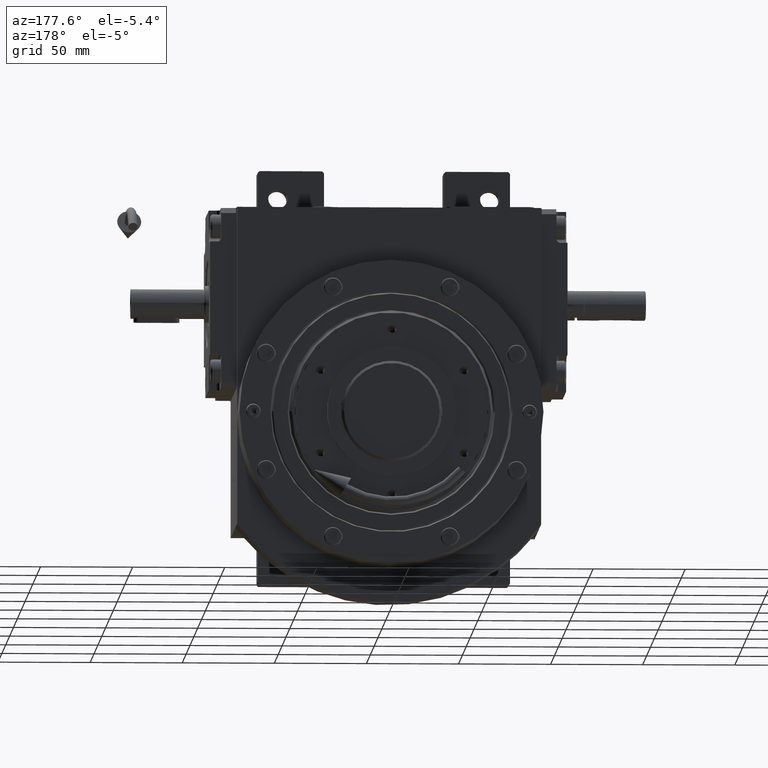
[diagram: clean part render]
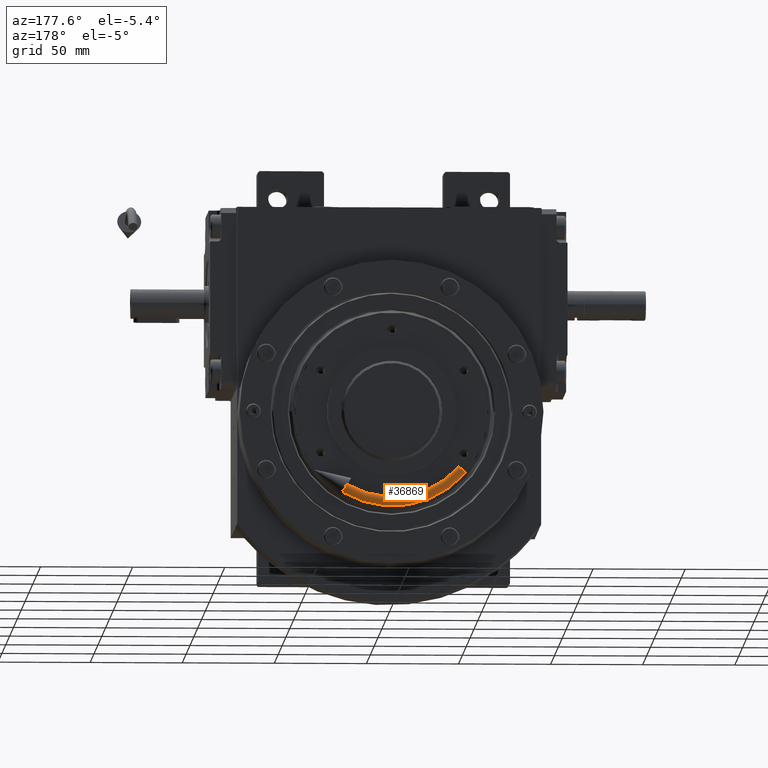
[diagram: same view with one face highlighted and labeled with its STEP entity id]
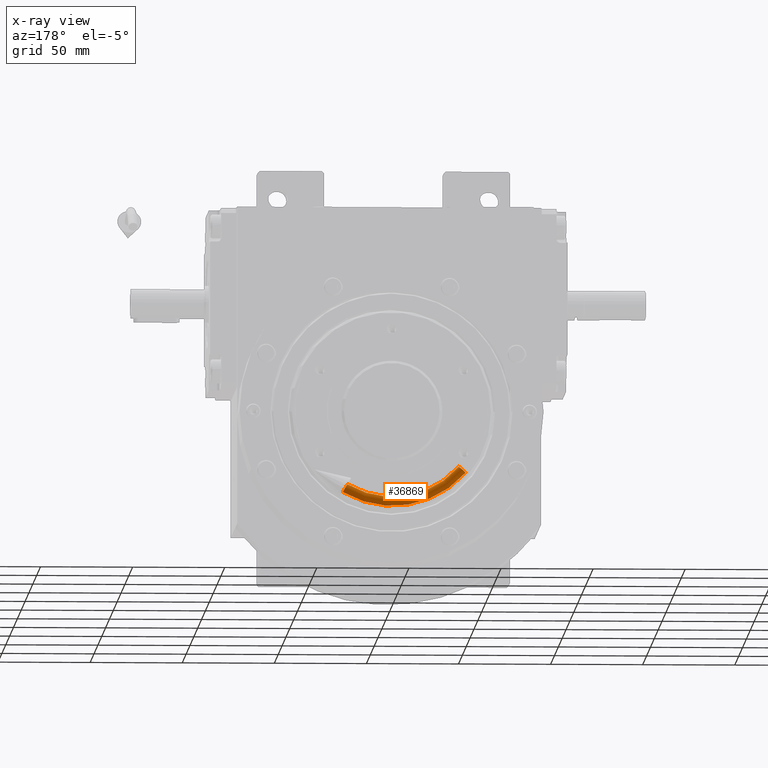
[diagram: x-ray of the same camera — body ghosted, the highlighted face saturated]
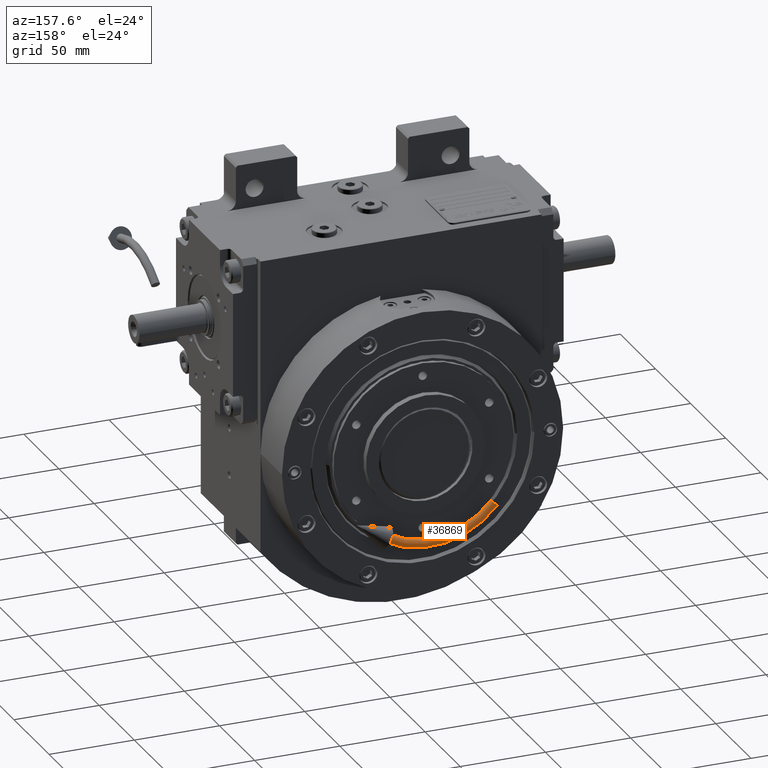
[diagram: same view with one face highlighted and labeled with its STEP entity id]
A machine part, auxiliary view. The second image highlights one B-rep face of the part: STEP entity #36869.
The next image is the same camera in x-ray: the body ghosted, the highlighted face saturated — about 0% of this face is hidden behind the body in this view.
A second angle (auxiliary view) of the same face is appended — the face is thin or edge-on in the first view.
In plain terms, the highlighted toroidal blend (fillet) surface has major radius 50 mm and minor (blend) radius 2.5 mm.
Its self-contained STEP definition (entity closure, byte-faithful):
#70 = ORIENTED_EDGE ( 'NONE', *, *, #43325, .F. ) ;
#739 = EDGE_CURVE ( 'NONE', #9802, #62113, #10098, .T. ) ;
#1687 = CARTESIAN_POINT ( 'NONE',  ( -8.682408883346308670, -1.387778780781445676E-14, 49.24038765061003176 ) ) ;
#3477 = CIRCLE ( 'NONE', #17933, 2.499999999983113064 ) ;
#5065 = EDGE_CURVE ( 'NONE', #23907, #19908, #49096, .T. ) ;
#5097 = DIRECTION ( 'NONE',  ( -2.041375527991182042E-16, -1.000000000000000000, 1.232595164407830946E-32 ) ) ;
#6346 = ORIENTED_EDGE ( 'NONE', *, *, #51980, .T. ) ;
#7802 = DIRECTION ( 'NONE',  ( 1.000000000000000000, -2.041375527991181795E-16, 0.000000000000000000 ) ) ;
#8896 = DIRECTION ( 'NONE',  ( 1.000000000000000000, 0.000000000000000000, -5.551115123125813517E-17 ) ) ;
#9191 = AXIS2_PLACEMENT_3D ( 'NONE', #14482, #5097, #19343 ) ;
#9802 = VERTEX_POINT ( 'NONE', #56744 ) ;
#10098 = CIRCLE ( 'NONE', #49300, 52.49999999998313882 ) ;
#10255 = FACE_OUTER_BOUND ( 'NONE', #60238, .T. ) ;
#10748 = DIRECTION ( 'NONE',  ( 0.1736481776669271393, 1.686894387621676009E-16, -0.9848077530122086864 ) ) ;
#12661 = DIRECTION ( 'NONE',  ( -2.041375527991182042E-16, -1.000000000000000000, 1.232595164407830946E-32 ) ) ;
#14482 = CARTESIAN_POINT ( 'NONE',  ( 0.000000000000000000, -1.387778780781445676E-14, 0.000000000000000000 ) ) ;
#14596 = CIRCLE ( 'NONE', #53803, 2.499999999983113064 ) ;
#17482 = TOROIDAL_SURFACE ( 'NONE', #9191, 50.00000000000000000, 2.499999999983133048 ) ;
#17933 = AXIS2_PLACEMENT_3D ( 'NONE', #1687, #21428, #10748 ) ;
#19343 = DIRECTION ( 'NONE',  ( 1.000000000000000000, -2.041375527991182042E-16, -5.551115123125820913E-17 ) ) ;
#19908 = VERTEX_POINT ( 'NONE', #29815 ) ;
#21428 = DIRECTION ( 'NONE',  ( 0.9848077530122086864, -2.010362446775138044E-16, 0.1736481776669274446 ) ) ;
#22053 = CARTESIAN_POINT ( 'NONE',  ( 0.000000000000000000, -1.387778780781445676E-14, 0.000000000000000000 ) ) ;
#23481 = DIRECTION ( 'NONE',  ( 5.551115123125820913E-17, 0.000000000000000000, 1.000000000000000000 ) ) ;
#23907 = VERTEX_POINT ( 'NONE', #30586 ) ;
#28692 = CARTESIAN_POINT ( 'NONE',  ( -52.49999999998293276, -3.160566285864233684E-15, -1.373900992973723831E-14 ) ) ;
#28973 = ORIENTED_EDGE ( 'NONE', *, *, #739, .F. ) ;
#29815 = CARTESIAN_POINT ( 'NONE',  ( -47.50000000001650591, 0.000000000000000000, -1.401656568589166416E-14 ) ) ;
#30586 = CARTESIAN_POINT ( 'NONE',  ( -8.248288439181953535, -1.188784069127382043E-14, 46.77836826809632953 ) ) ;
#31671 = CARTESIAN_POINT ( 'NONE',  ( 6.249910015488181172E-32, -1.357162610802968412E-14, -3.773734306815928641E-48 ) ) ;
#32007 = DIRECTION ( 'NONE',  ( 1.000000000000000000, -2.041375527991182042E-16, 0.000000000000000000 ) ) ;
#33493 = CARTESIAN_POINT ( 'NONE',  ( -49.99999999999962341, 0.000000000000000000, -1.387778780781445676E-14 ) ) ;
#36869 = ADVANCED_FACE ( 'NONE', ( #10255 ), #17482, .T. ) ;
#43325 = EDGE_CURVE ( 'NONE', #23907, #9802, #3477, .T. ) ;
#44965 = AXIS2_PLACEMENT_3D ( 'NONE', #31671, #47145, #32007 ) ;
#47145 = DIRECTION ( 'NONE',  ( -2.041375527991182042E-16, -1.000000000000000000, 1.232595164407830946E-32 ) ) ;
#49096 = CIRCLE ( 'NONE', #44965, 47.50000000001686828 ) ;
#49300 = AXIS2_PLACEMENT_3D ( 'NONE', #22053, #12661, #7802 ) ;
#51980 = EDGE_CURVE ( 'NONE', #19908, #62113, #14596, .T. ) ;
#53803 = AXIS2_PLACEMENT_3D ( 'NONE', #33493, #23481, #8896 ) ;
#56744 = CARTESIAN_POINT ( 'NONE',  ( -9.116529327510729530, -1.201676182087502474E-14, 51.70240703312413189 ) ) ;
#60238 = EDGE_LOOP ( 'NONE', ( #28973, #70, #63831, #6346 ) ) ;
#62113 = VERTEX_POINT ( 'NONE', #28692 ) ;
#63831 = ORIENTED_EDGE ( 'NONE', *, *, #5065, .T. ) ;